MODEL slx_6ac6de17d5f1
KIND model
CONFIG AbsTol = auto
CONFIG EnableMultiTasking = off
CONFIG FixedStep = sim.dt
CONFIG MaxStep = 1E-05
CONFIG MinStep = auto
CONFIG RelTol = 1e-3
CONFIG SampleTimeConstraint = Unconstrained
CONFIG Solver = ode3
CONFIG SolverName = ode3
CONFIG StartTime = 0.0
CONFIG StopTime = sim.tend
BLOCK [SubSystem] C_cmd
  Ports = [0, 1]
  RequestExecContextInheritance = off
BLOCK [Outport] C_cmd/C_cmd
BLOCK [Constant] C_cmd/C_cmd1
  Value = 0.3
BLOCK [Reference] C_cmd/C_cmd2  REF=simulink/Sources/Repeating
Sequence
  Ports = [0, 1]
  SourceBlock = simulink/Sources/Repeating\nSequence
  SourceProductBaseCode = SL
  SourceType = Repeating table
BLOCK [ManualSwitch] C_cmd/Manual Switch3
BLOCK [Constant] Cl
  Value = load.Cl
BLOCK [ModelReference] Controller
  CopyOfModelProtected = on
  ModelNameDialog = Controller
  ModelReferenceVersion = 1.832
  Ports = [9, 2]
BLOCK [DisplayBlock] Display4
  Format = short
  LabelPosition = Hide
  Transparency = 1
BLOCK [From] From1
  GotoTag = Iabc0_fdbck
BLOCK [From] From12
  GotoTag = Vdq0_cmd
BLOCK [From] From13
  GotoTag = Idq0_cmd
BLOCK [From] From14
  GotoTag = C_cmd
BLOCK [From] From15
  GotoTag = nm_cmd
BLOCK [From] From16
  GotoTag = Mode_cmd
BLOCK [From] From2
  GotoTag = VDC_fdbck
BLOCK [From] From3
  GotoTag = Vabc0_ref
BLOCK [From] From4
  GotoTag = thetam_fdbck
BLOCK [From] From5
  GotoTag = thetam_fdbck
BLOCK [From] From6
  GotoTag = Iabc0_fdbck
BLOCK [From] From7
  GotoTag = Vabc0_ref
BLOCK [Goto] Goto1
  GotoTag = Iabc0_fdbck
BLOCK [Goto] Goto2
  GotoTag = VDC_fdbck
BLOCK [Goto] Goto3
  GotoTag = Vdq0_cmd
BLOCK [Goto] Goto4
  GotoTag = thetam_fdbck
BLOCK [Goto] Goto5
  GotoTag = Vabc0_ref
BLOCK [Goto] Goto6
  GotoTag = Idq0_cmd
BLOCK [Goto] Goto7
  GotoTag = C_cmd
BLOCK [Goto] Goto8
  GotoTag = nm_cmd
BLOCK [Goto] Goto9
  GotoTag = Mode_cmd
BLOCK [SubSystem] Idq0_cmd
  Ports = [0, 1]
  RequestExecContextInheritance = off
BLOCK [Outport] Idq0_cmd/Idq0_cmd
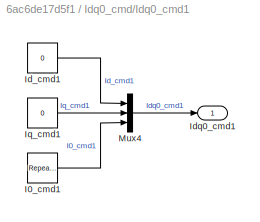
BLOCK [SubSystem] Idq0_cmd/Idq0_cmd1
  Ports = [0, 1]
  RequestExecContextInheritance = off
BLOCK [Reference] Idq0_cmd/Idq0_cmd1/I0_cmd1  REF=simulink/Sources/Repeating
Sequence
  Ports = [0, 1]
  SourceBlock = simulink/Sources/Repeating\nSequence
  SourceProductBaseCode = SL
  SourceType = Repeating table
BLOCK [Constant] Idq0_cmd/Idq0_cmd1/Id_cmd1
  Value = 0
BLOCK [Outport] Idq0_cmd/Idq0_cmd1/Idq0_cmd1
BLOCK [Constant] Idq0_cmd/Idq0_cmd1/Iq_cmd1
  Value = 0
BLOCK [Mux] Idq0_cmd/Idq0_cmd1/Mux4
  DisplayOption = bar
  Inputs = 3
  Ports = [3, 1]
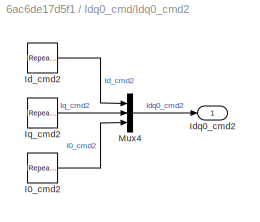
BLOCK [SubSystem] Idq0_cmd/Idq0_cmd2
  Ports = [0, 1]
  RequestExecContextInheritance = off
BLOCK [Reference] Idq0_cmd/Idq0_cmd2/I0_cmd2  REF=simulink/Sources/Repeating
Sequence
  Ports = [0, 1]
  SourceBlock = simulink/Sources/Repeating\nSequence
  SourceProductBaseCode = SL
  SourceType = Repeating table
BLOCK [Reference] Idq0_cmd/Idq0_cmd2/Id_cmd2  REF=simulink/Sources/Repeating
Sequence
  Ports = [0, 1]
  SourceBlock = simulink/Sources/Repeating\nSequence
  SourceProductBaseCode = SL
  SourceType = Repeating table
BLOCK [Outport] Idq0_cmd/Idq0_cmd2/Idq0_cmd2
BLOCK [Reference] Idq0_cmd/Idq0_cmd2/Iq_cmd2  REF=simulink/Sources/Repeating
Sequence
  Ports = [0, 1]
  SourceBlock = simulink/Sources/Repeating\nSequence
  SourceProductBaseCode = SL
  SourceType = Repeating table
BLOCK [Mux] Idq0_cmd/Idq0_cmd2/Mux4
  DisplayOption = bar
  Inputs = 3
  Ports = [3, 1]
BLOCK [ManualSwitch] Idq0_cmd/Manual Switch2
BLOCK [Constant] Jl
  Value = load.Jl
BLOCK [KnobBlock] Knob
  ScaleMax = 10
  ScaleMin = -10
BLOCK [KnobBlock] Knob1
  ScaleMax = 8000
  ScaleMin = -8000
BLOCK [KnobBlock] Knob2
  ScaleMax = 0.3
  ScaleMin = -0.3
BLOCK [KnobBlock] Knob3
  ScaleMax = 10
  ScaleMin = -10
BLOCK [KnobBlock] Knob4
  ScaleMax = 20
  ScaleMin = -20
BLOCK [KnobBlock] Knob5
  ScaleMax = 20
  ScaleMin = -20
BLOCK [Constant] Mode_cmd
  Value = 4
BLOCK [ModelReference] Plant
  CopyOfModelProtected = on
  ModelNameDialog = Plant
  ModelReferenceVersion = 1.833
  Ports = [5, 2]
BLOCK [ModelReference] PostProcessing
  CopyOfModelProtected = on
  ModelNameDialog = PostProcessing
  ModelReferenceVersion = 1.832
  Ports = [8, 8]
BLOCK [RotarySwitchBlock] Rotary Switch
BLOCK [Scope] Scope_C
  Floating = off
  NumInputPorts = 2
  Ports = [2]
  ScopeSpecificationString = Simulink.scopes.TimeScopeBlockCfg('CurrentConfiguration', extmgr.ConfigurationSet(extmgr.Configuration('Core','General UI',true),extmgr.Configuration('Core','Source UI',true),extmgr.Configuration('Sources','WiredSimulink',true,'DataLoggingVariableName','ScopeData7'),extmgr.Configuration('Visuals','Time Domain',true,'SerializedDisplays',{struct('MinYLimReal','-0.36879','MaxYLimReal','0.40391','YLab...<+1454ch>
BLOCK [Scope] Scope_Idq0
  Floating = off
  NumInputPorts = 2
  Ports = [2]
  ScopeSpecificationString = Simulink.scopes.TimeScopeBlockCfg('CurrentConfiguration', extmgr.ConfigurationSet(extmgr.Configuration('Core','General UI',true),extmgr.Configuration('Core','Source UI',true),extmgr.Configuration('Sources','WiredSimulink',true,'DataLoggingVariableName','ScopeData6'),extmgr.Configuration('Visuals','Time Domain',true,'SerializedDisplays',{struct('MinYLimReal','-6.4049','MaxYLimReal','6.44424','YLabe...<+1531ch>
BLOCK [Scope] Scope_Vdq0
  Floating = off
  NumInputPorts = 2
  Ports = [2]
  ScopeSpecificationString = Simulink.scopes.TimeScopeBlockCfg('CurrentConfiguration', extmgr.ConfigurationSet(extmgr.Configuration('Core','General UI',true),extmgr.Configuration('Core','Source UI',true),extmgr.Configuration('Sources','WiredSimulink',true,'DataLoggingVariableName','ScopeData2'),extmgr.Configuration('Visuals','Time Domain',true,'SerializedDisplays',{struct('MinYLimReal','-1.00000','MaxYLimReal','1.00000','YLab...<+1553ch>
BLOCK [Scope] Scope_global
  Floating = off
  NumInputPorts = 8
  Ports = [8]
  ScopeSpecificationString = Simulink.scopes.TimeScopeBlockCfg('CurrentConfiguration', extmgr.ConfigurationSet(extmgr.Configuration('Core','General UI',true),extmgr.Configuration('Core','Source UI',true),extmgr.Configuration('Sources','WiredSimulink',true,'DataLoggingVariableName','ScopeData1'),extmgr.Configuration('Visuals','Time Domain',true,'SerializedDisplays',{struct('MinYLimReal','-1.00000','MaxYLimReal','1.00000','YLab...<+6540ch>
BLOCK [Scope] Scope_nm
  Floating = off
  NumInputPorts = 2
  Ports = [2]
  ScopeSpecificationString = Simulink.scopes.TimeScopeBlockCfg('CurrentConfiguration', extmgr.ConfigurationSet(extmgr.Configuration('Core','General UI',true),extmgr.Configuration('Core','Source UI',true),extmgr.Configuration('Sources','WiredSimulink',true,'DataLoggingVariableName','ScopeData4'),extmgr.Configuration('Visuals','Time Domain',true,'SerializedDisplays',{struct('MinYLimReal','918.20099','MaxYLimReal','1467.40548','...<+1476ch>
BLOCK [Constant] VDC_fdbck
  Value = 24
BLOCK [SubSystem] Vdq0_cmd
  Ports = [0, 1]
  RequestExecContextInheritance = off
BLOCK [ManualSwitch] Vdq0_cmd/Manual Switch2
BLOCK [Outport] Vdq0_cmd/Vdq0_cmd
BLOCK [SubSystem] Vdq0_cmd/Vdq0_cmd1
  Ports = [0, 1]
  RequestExecContextInheritance = off
BLOCK [Mux] Vdq0_cmd/Vdq0_cmd1/Mux4
  DisplayOption = bar
  Inputs = 3
  Ports = [3, 1]
BLOCK [Reference] Vdq0_cmd/Vdq0_cmd1/V0_cmd1  REF=simulink/Sources/Repeating
Sequence
  Ports = [0, 1]
  SourceBlock = simulink/Sources/Repeating\nSequence
  SourceProductBaseCode = SL
  SourceType = Repeating table
BLOCK [Constant] Vdq0_cmd/Vdq0_cmd1/Vd_cmd1
  Value = 0
BLOCK [Outport] Vdq0_cmd/Vdq0_cmd1/Vdq0_cmd1
BLOCK [Constant] Vdq0_cmd/Vdq0_cmd1/Vq_cmd1
  Value = 0
BLOCK [SubSystem] Vdq0_cmd/Vdq0_cmd2
  Ports = [0, 1]
  RequestExecContextInheritance = off
BLOCK [Mux] Vdq0_cmd/Vdq0_cmd2/Mux4
  DisplayOption = bar
  Inputs = 3
  Ports = [3, 1]
BLOCK [Reference] Vdq0_cmd/Vdq0_cmd2/V0_cmd2  REF=simulink/Sources/Repeating
Sequence
  Ports = [0, 1]
  SourceBlock = simulink/Sources/Repeating\nSequence
  SourceProductBaseCode = SL
  SourceType = Repeating table
BLOCK [Reference] Vdq0_cmd/Vdq0_cmd2/Vd_cmd2  REF=simulink/Sources/Repeating
Sequence
  Ports = [0, 1]
  SourceBlock = simulink/Sources/Repeating\nSequence
  SourceProductBaseCode = SL
  SourceType = Repeating table
BLOCK [Outport] Vdq0_cmd/Vdq0_cmd2/Vdq0_cmd2
BLOCK [Reference] Vdq0_cmd/Vdq0_cmd2/Vq_cmd2  REF=simulink/Sources/Repeating
Sequence
  Ports = [0, 1]
  SourceBlock = simulink/Sources/Repeating\nSequence
  SourceProductBaseCode = SL
  SourceType = Repeating table
BLOCK [SubSystem] nm_cmd
  Ports = [0, 1]
  RequestExecContextInheritance = off
BLOCK [ManualSwitch] nm_cmd/Manual Switch1
BLOCK [Outport] nm_cmd/nm_cmd
BLOCK [Constant] nm_cmd/nm_cmd1
  Value = 2000
BLOCK [SubSystem] nm_cmd/nm_cmd2
  Ports = [0, 1]
  RequestExecContextInheritance = off
BLOCK [Sum] nm_cmd/nm_cmd2/Add
  IconShape = rectangular
  Ports = [2, 1]
BLOCK [Reference] nm_cmd/nm_cmd2/Repeating Sequence  REF=simulink/Sources/Repeating
Sequence
  Ports = [0, 1]
  SourceBlock = simulink/Sources/Repeating\nSequence
  SourceProductBaseCode = SL
  SourceType = Repeating table
BLOCK [Sin] nm_cmd/nm_cmd2/Sine Wave
  Amplitude = 50
  Frequency = 5*2*pi
  Ports = [0, 1]
  SampleTime = 0
BLOCK [Outport] nm_cmd/nm_cmd2/nm_cmd2
BLOCK [Reference] thetam_cmd  REF=simulink/Sources/Repeating
Sequence
  Ports = [0, 1]
  SourceBlock = simulink/Sources/Repeating\nSequence
  SourceProductBaseCode = SL
  SourceType = Repeating table
ANNOTATION (root): Quick guide: 1 - Select the command mode (Mode_cmd) through the related rotary switch 2 - Modify the command voltages (Vd_cmd and Vq_cmd) / currents (Id_cmd and Iq_cmd) / torque (C_cmd) / speed (nm_cmd) / angle (thetam_cmd) through the related knob 3 - Open the Vdq0, Idq0, C, nm and global scopes to see the simulation results
ANNOTATION (root): 0: Idle 1: Voltage control 2: Current control 3: Torque control 4: Speed control 5: Position control 6: ASCL 7: ASCU 8: 6SO
ANNOTATION (root): Inverter and PMSM controller
ANNOTATION (root): Inverter and PMSM model
ANNOTATION (root): User block
ANNOTATION (root): Notes: 1) Double click on the white blocks to open the protected model read-only view 2) Please, rate the tools on MathWorks , GitHub , etc. 3) Please, comment or contact me via mail ( <email> ) to get the model description, the unprotected scripts / models, or to request support
ANNOTATION (root): ECU
ANNOTATION (root): Plant
LINE C_cmd/C_cmd1:1 -> C_cmd/Manual Switch3:1
LINE C_cmd/C_cmd2:1 -> C_cmd/Manual Switch3:2
LINE C_cmd/Manual Switch3:1 -> C_cmd/C_cmd:1
NET C_cmd:1 -> Controller:4, Goto7:1
LINE Cl:1 -> Plant:4
LINE Controller:1 -> Plant:1
LINE Controller:2 -> Goto5:1
LINE From12:1 -> PostProcessing:2
LINE From13:1 -> PostProcessing:3
LINE From14:1 -> PostProcessing:4
LINE From15:1 -> PostProcessing:5
LINE From16:1 -> PostProcessing:1
LINE From1:1 -> Controller:9
LINE From2:1 -> Plant:3
LINE From3:1 -> Plant:2
LINE From4:1 -> Controller:8
LINE From5:1 -> PostProcessing:7
LINE From6:1 -> PostProcessing:8
LINE From7:1 -> PostProcessing:6
LINE Idq0_cmd/Idq0_cmd1/I0_cmd1:1 -> Idq0_cmd/Idq0_cmd1/Mux4:3
LINE Idq0_cmd/Idq0_cmd1/Id_cmd1:1 -> Idq0_cmd/Idq0_cmd1/Mux4:1
LINE Idq0_cmd/Idq0_cmd1/Iq_cmd1:1 -> Idq0_cmd/Idq0_cmd1/Mux4:2
LINE Idq0_cmd/Idq0_cmd1/Mux4:1 -> Idq0_cmd/Idq0_cmd1/Idq0_cmd1:1
LINE Idq0_cmd/Idq0_cmd1:1 -> Idq0_cmd/Manual Switch2:1
LINE Idq0_cmd/Idq0_cmd2/I0_cmd2:1 -> Idq0_cmd/Idq0_cmd2/Mux4:3
LINE Idq0_cmd/Idq0_cmd2/Id_cmd2:1 -> Idq0_cmd/Idq0_cmd2/Mux4:1
LINE Idq0_cmd/Idq0_cmd2/Iq_cmd2:1 -> Idq0_cmd/Idq0_cmd2/Mux4:2
LINE Idq0_cmd/Idq0_cmd2/Mux4:1 -> Idq0_cmd/Idq0_cmd2/Idq0_cmd2:1
LINE Idq0_cmd/Idq0_cmd2:1 -> Idq0_cmd/Manual Switch2:2
LINE Idq0_cmd/Manual Switch2:1 -> Idq0_cmd/Idq0_cmd:1
NET Idq0_cmd:1 -> Controller:3, Goto6:1
LINE Jl:1 -> Plant:5
NET Mode_cmd:1 -> Controller:1, Goto9:1
LINE Plant:1 -> Goto4:1
LINE Plant:2 -> Goto1:1
NET PostProcessing:1 -> Scope_Vdq0:1, Scope_global:1
NET PostProcessing:2 -> Scope_Vdq0:2, Scope_global:2
NET PostProcessing:3 -> Scope_Idq0:1, Scope_global:3
NET PostProcessing:4 -> Scope_Idq0:2, Scope_global:4
NET PostProcessing:5 -> Scope_C:1, Scope_global:5
NET PostProcessing:6 -> Scope_C:2, Scope_global:6
NET PostProcessing:7 -> Scope_global:7, Scope_nm:1
NET PostProcessing:8 -> Scope_global:8, Scope_nm:2
NET VDC_fdbck:1 -> Controller:7, Goto2:1
LINE Vdq0_cmd/Manual Switch2:1 -> Vdq0_cmd/Vdq0_cmd:1
LINE Vdq0_cmd/Vdq0_cmd1/Mux4:1 -> Vdq0_cmd/Vdq0_cmd1/Vdq0_cmd1:1
LINE Vdq0_cmd/Vdq0_cmd1/V0_cmd1:1 -> Vdq0_cmd/Vdq0_cmd1/Mux4:3
LINE Vdq0_cmd/Vdq0_cmd1/Vd_cmd1:1 -> Vdq0_cmd/Vdq0_cmd1/Mux4:1
LINE Vdq0_cmd/Vdq0_cmd1/Vq_cmd1:1 -> Vdq0_cmd/Vdq0_cmd1/Mux4:2
LINE Vdq0_cmd/Vdq0_cmd1:1 -> Vdq0_cmd/Manual Switch2:1
LINE Vdq0_cmd/Vdq0_cmd2/Mux4:1 -> Vdq0_cmd/Vdq0_cmd2/Vdq0_cmd2:1
LINE Vdq0_cmd/Vdq0_cmd2/V0_cmd2:1 -> Vdq0_cmd/Vdq0_cmd2/Mux4:3
LINE Vdq0_cmd/Vdq0_cmd2/Vd_cmd2:1 -> Vdq0_cmd/Vdq0_cmd2/Mux4:1
LINE Vdq0_cmd/Vdq0_cmd2/Vq_cmd2:1 -> Vdq0_cmd/Vdq0_cmd2/Mux4:2
LINE Vdq0_cmd/Vdq0_cmd2:1 -> Vdq0_cmd/Manual Switch2:2
NET Vdq0_cmd:1 -> Controller:2, Goto3:1
LINE nm_cmd/Manual Switch1:1 -> nm_cmd/nm_cmd:1
LINE nm_cmd/nm_cmd1:1 -> nm_cmd/Manual Switch1:1
LINE nm_cmd/nm_cmd2/Add:1 -> nm_cmd/nm_cmd2/nm_cmd2:1
LINE nm_cmd/nm_cmd2/Repeating Sequence:1 -> nm_cmd/nm_cmd2/Add:2
LINE nm_cmd/nm_cmd2/Sine Wave:1 -> nm_cmd/nm_cmd2/Add:1
LINE nm_cmd/nm_cmd2:1 -> nm_cmd/Manual Switch1:2
NET nm_cmd:1 -> Controller:5, Goto8:1
LINE thetam_cmd:1 -> Controller:6
note: NET lines group one-source signal fan-out (src -> all destinations, sorted); 1:1 wires keep LINE
